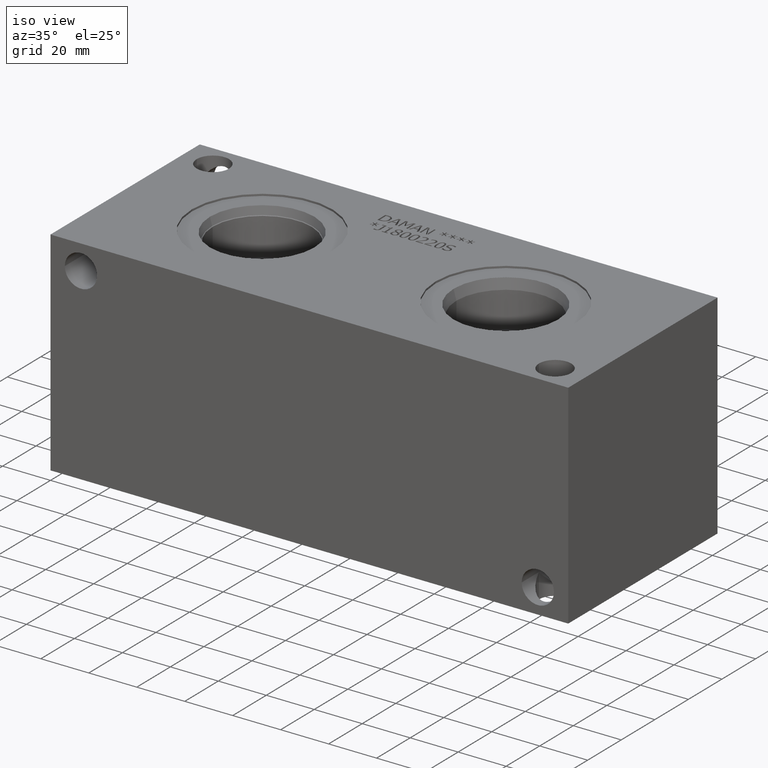
[diagram: clean part render]
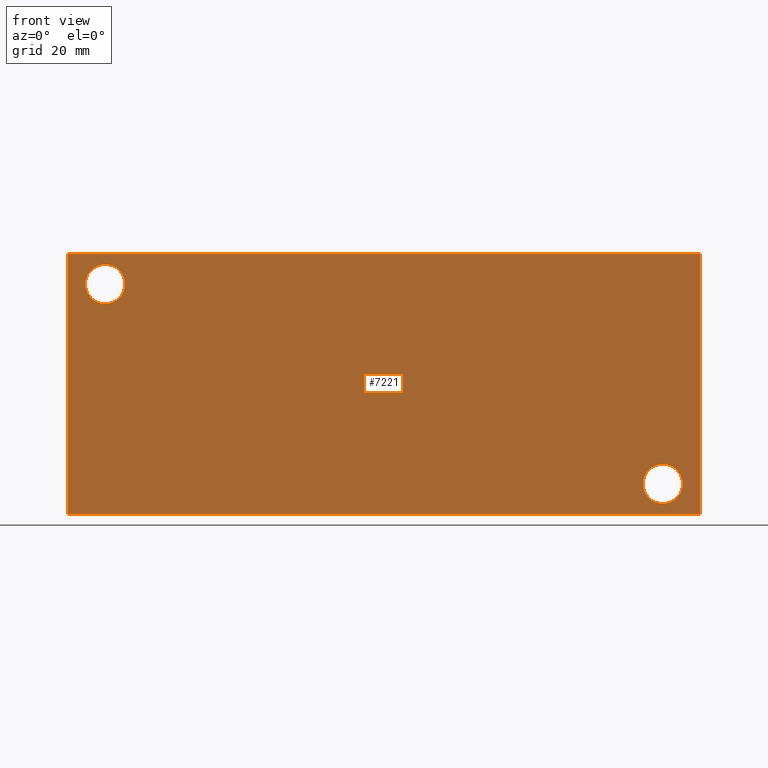
[diagram: tour spotlight — one face highlighted and labeled with its STEP entity id]
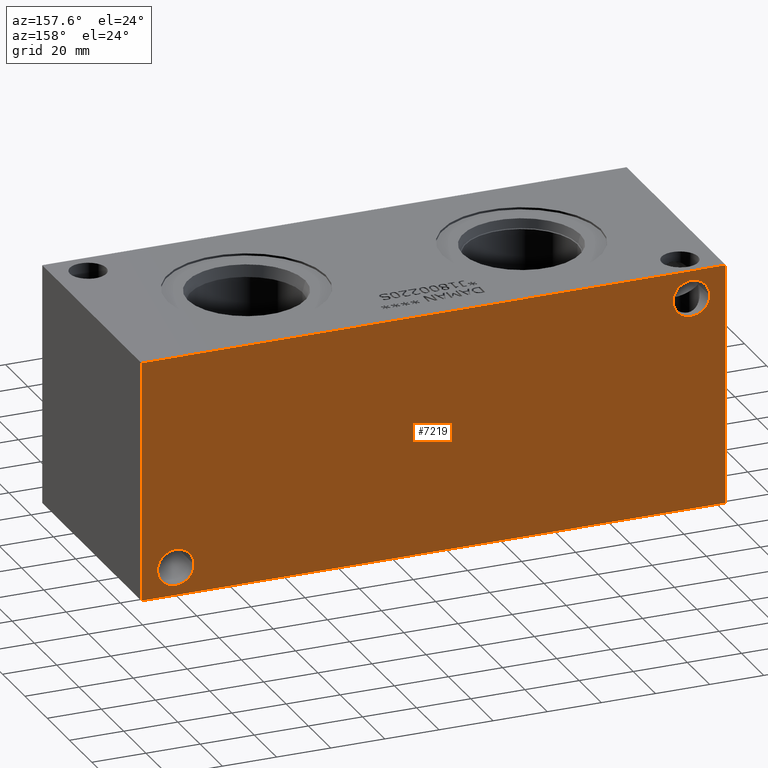
[diagram: tour spotlight — one face highlighted and labeled with its STEP entity id]
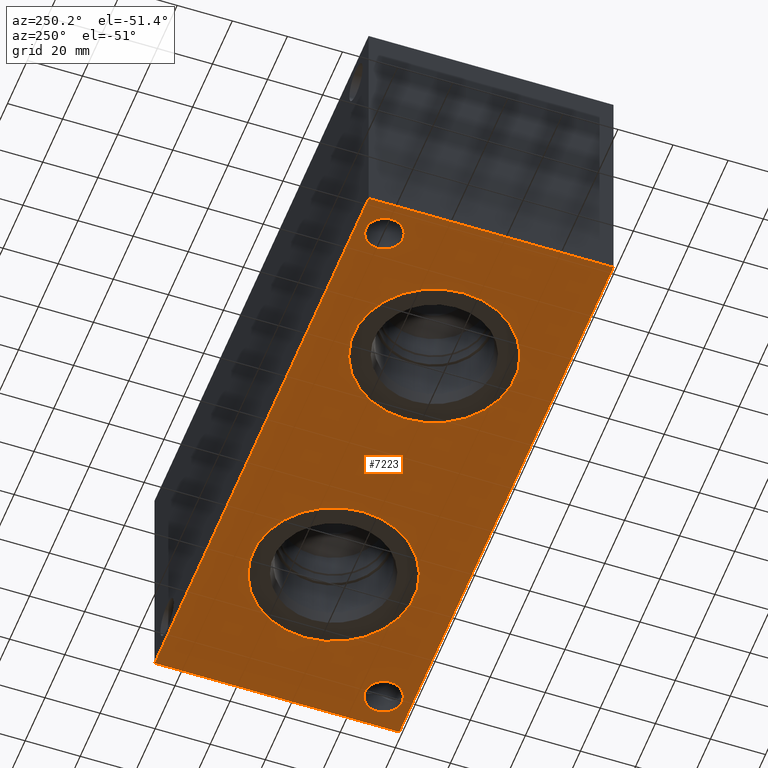
[diagram: tour spotlight — one face highlighted and labeled with its STEP entity id]
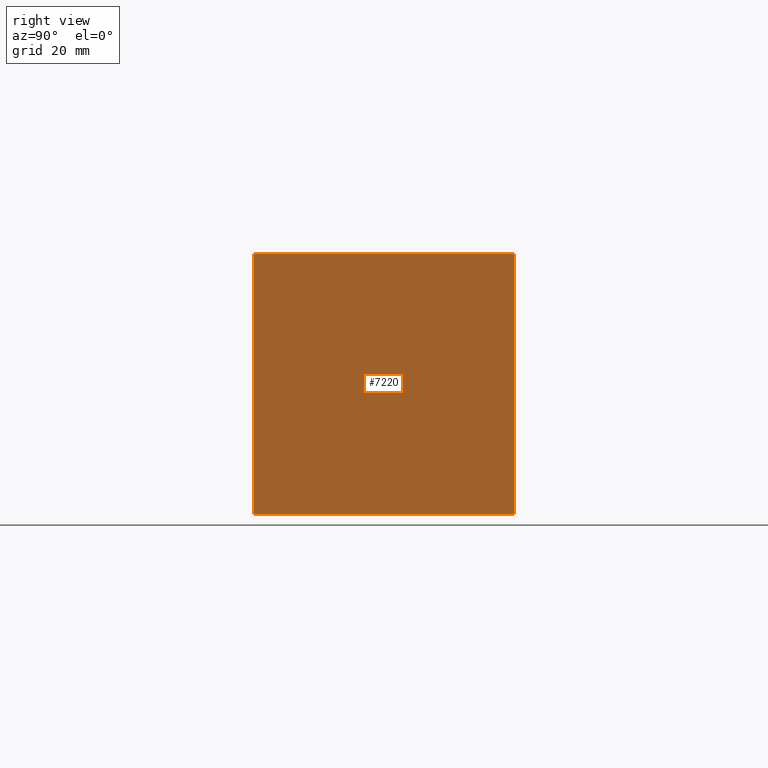
[diagram: tour spotlight — one face highlighted and labeled with its STEP entity id]
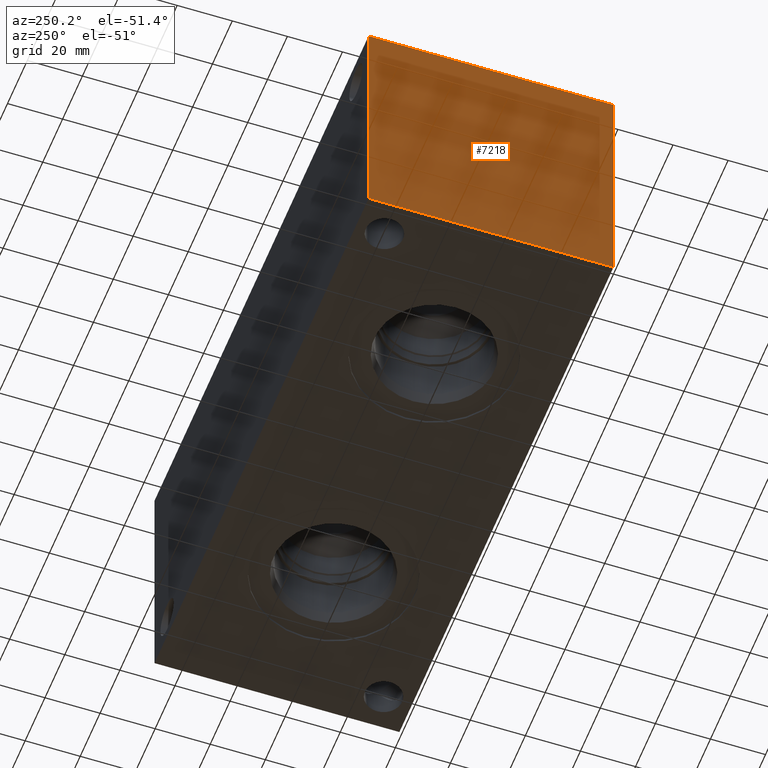
[diagram: tour spotlight — one face highlighted and labeled with its STEP entity id]
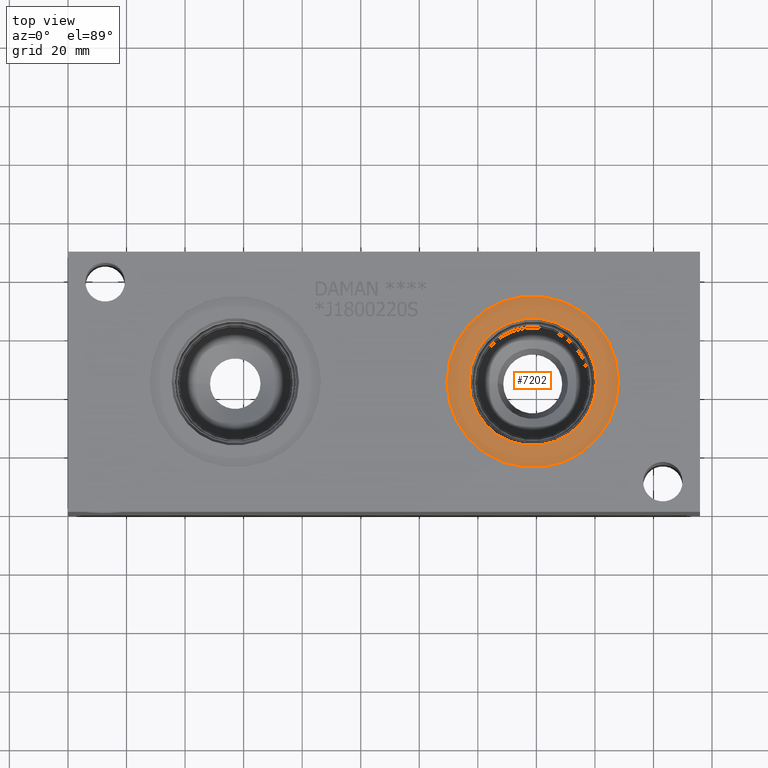
[diagram: tour spotlight — one face highlighted and labeled with its STEP entity id]
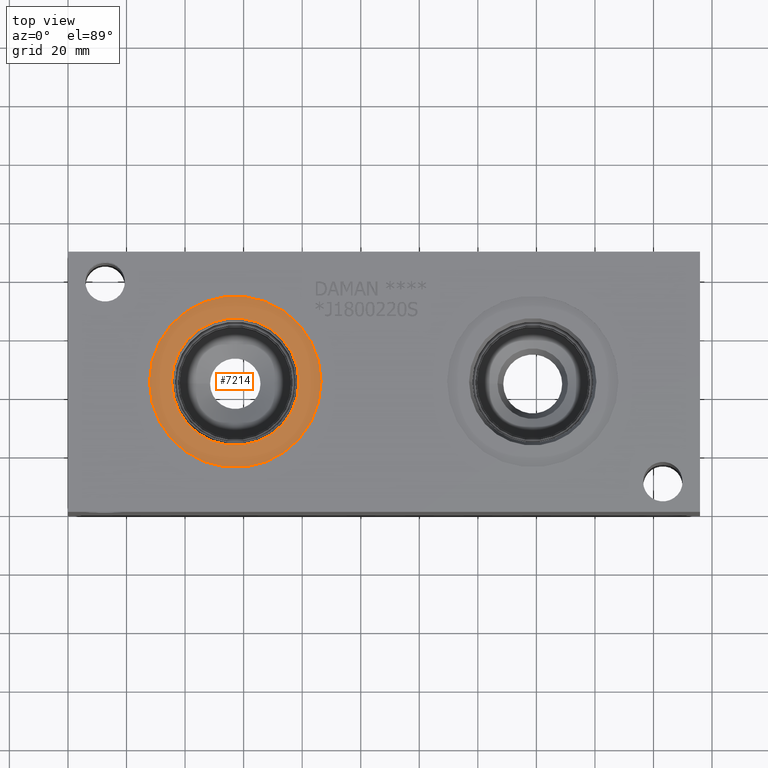
[diagram: tour spotlight — one face highlighted and labeled with its STEP entity id]
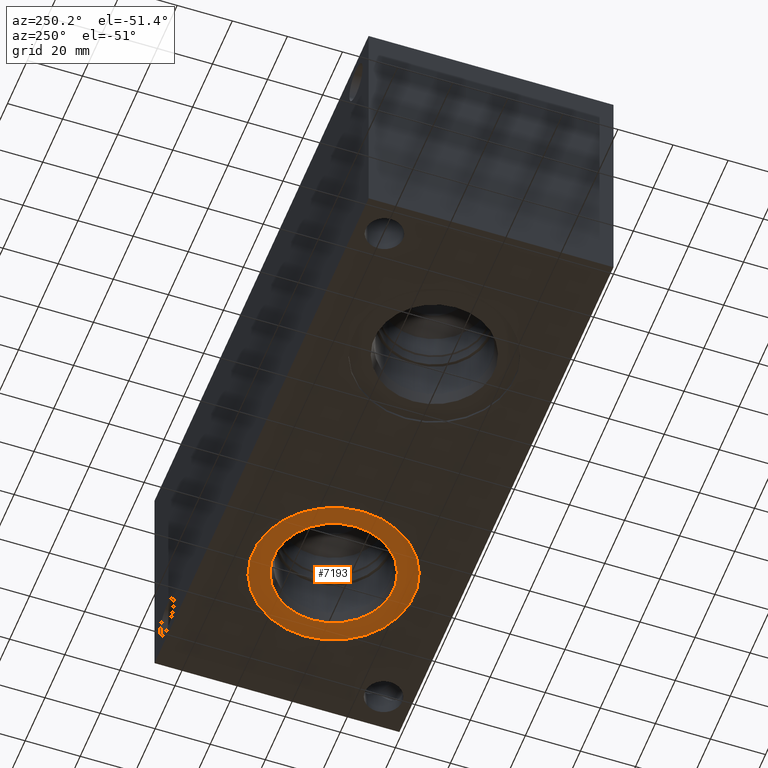
[diagram: tour spotlight — one face highlighted and labeled with its STEP entity id]
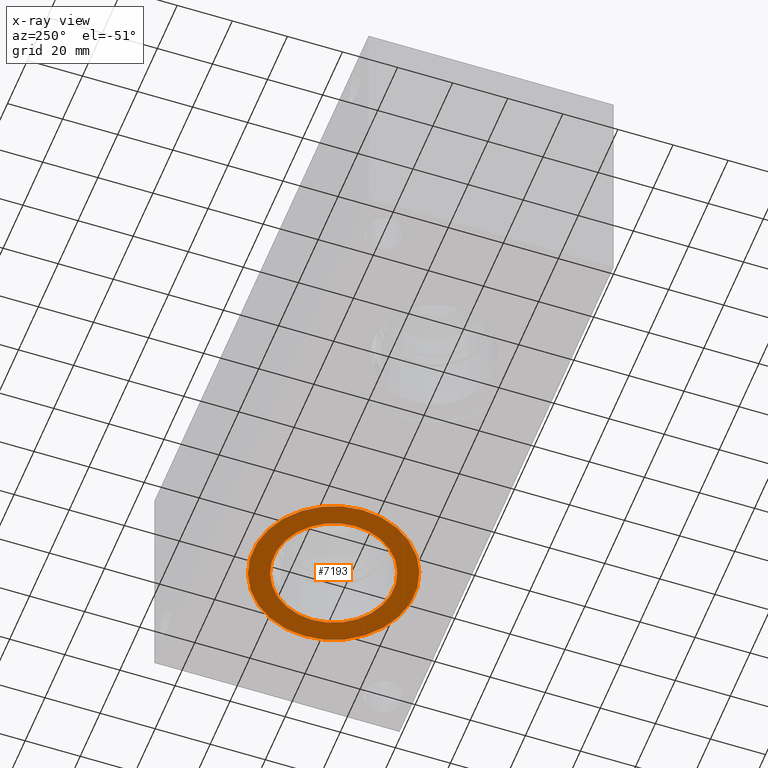
[diagram: x-ray of the same camera — body ghosted, this tour face saturated]
A machine part: a face-by-face anatomy tour. The part has 368 B-rep faces; the first image is the clean iso view, then the 8 largest visible faces are spotlighted one at a time (largest first), each with its STEP entity span.

Face 1 — front view, entity #7221. In plain terms, the highlighted planar face has unit normal (0, -1, 0).
Definition (entity closure, byte-faithful):
#74=CIRCLE('',#7450,6.7437);
#75=CIRCLE('',#7451,6.7437);
#77=CIRCLE('',#7460,6.7437);
#78=CIRCLE('',#7461,6.7437);
#191=FACE_BOUND('',#1293,.T.);
#192=FACE_BOUND('',#1294,.T.);
#883=FACE_OUTER_BOUND('',#1292,.T.);
#1292=EDGE_LOOP('',(#6315,#6316,#6317,#6318));
#1293=EDGE_LOOP('',(#6319,#6320));
#1294=EDGE_LOOP('',(#6321,#6322));
#1559=LINE('',#11203,#2250);
#1985=LINE('',#12395,#2676);
#1990=LINE('',#12404,#2681);
#1991=LINE('',#12406,#2682);
#2250=VECTOR('',#7979,10.);
#2676=VECTOR('',#8973,10.);
#2681=VECTOR('',#8982,10.);
#2682=VECTOR('',#8985,10.);
#2987=VERTEX_POINT('',#11201);
#2988=VERTEX_POINT('',#11202);
#3261=VERTEX_POINT('',#12132);
#3262=VERTEX_POINT('',#12133);
#3266=VERTEX_POINT('',#12150);
#3267=VERTEX_POINT('',#12151);
#3342=VERTEX_POINT('',#12393);
#3344=VERTEX_POINT('',#12402);
#3801=EDGE_CURVE('',#2987,#2988,#1559,.T.);
#4206=EDGE_CURVE('',#3261,#3262,#74,.T.);
#4207=EDGE_CURVE('',#3262,#3261,#75,.T.);
#4216=EDGE_CURVE('',#3266,#3267,#77,.T.);
#4217=EDGE_CURVE('',#3267,#3266,#78,.T.);
#4335=EDGE_CURVE('',#3342,#2987,#1985,.T.);
#4340=EDGE_CURVE('',#3344,#2988,#1990,.T.);
#4341=EDGE_CURVE('',#3342,#3344,#1991,.T.);
#6315=ORIENTED_EDGE('',*,*,#4341,.T.);
#6316=ORIENTED_EDGE('',*,*,#4340,.T.);
#6317=ORIENTED_EDGE('',*,*,#3801,.F.);
#6318=ORIENTED_EDGE('',*,*,#4335,.F.);
#6319=ORIENTED_EDGE('',*,*,#4206,.T.);
#6320=ORIENTED_EDGE('',*,*,#4207,.T.);
#6321=ORIENTED_EDGE('',*,*,#4216,.T.);
#6322=ORIENTED_EDGE('',*,*,#4217,.T.);
#6550=PLANE('',#7588);
#7221=ADVANCED_FACE('',(#883,#191,#192),#6550,.T.);
#7450=AXIS2_PLACEMENT_3D('',#12134,#8656,#8657);
#7451=AXIS2_PLACEMENT_3D('',#12135,#8658,#8659);
#7460=AXIS2_PLACEMENT_3D('',#12152,#8679,#8680);
#7461=AXIS2_PLACEMENT_3D('',#12153,#8681,#8682);
#7588=AXIS2_PLACEMENT_3D('',#12405,#8983,#8984);
#7979=DIRECTION('',(1.,0.,0.));
#8656=DIRECTION('center_axis',(0.,1.,0.));
#8657=DIRECTION('ref_axis',(1.,0.,0.));
#8658=DIRECTION('center_axis',(0.,1.,0.));
#8659=DIRECTION('ref_axis',(1.,0.,0.));
#8679=DIRECTION('center_axis',(0.,1.,0.));
#8680=DIRECTION('ref_axis',(1.,0.,0.));
#8681=DIRECTION('center_axis',(0.,1.,0.));
#8682=DIRECTION('ref_axis',(1.,0.,0.));
#8973=DIRECTION('',(0.,0.,1.));
#8982=DIRECTION('',(0.,0.,1.));
#8983=DIRECTION('center_axis',(0.,-1.,0.));
#8984=DIRECTION('ref_axis',(1.,0.,0.));
#8985=DIRECTION('',(1.,0.,0.));
#11201=CARTESIAN_POINT('',(0.,0.,88.9));
#11202=CARTESIAN_POINT('',(215.9,0.,88.9));
#11203=CARTESIAN_POINT('',(0.,0.,88.9));
#12132=CARTESIAN_POINT('',(209.9437,0.,10.3124));
#12133=CARTESIAN_POINT('',(196.4563,0.,10.3124));
#12134=CARTESIAN_POINT('Origin',(203.2,0.,10.3124));
#12135=CARTESIAN_POINT('Origin',(203.2,0.,10.3124));
#12150=CARTESIAN_POINT('',(19.4437,0.,78.5876));
#12151=CARTESIAN_POINT('',(5.9563,0.,78.5876));
#12152=CARTESIAN_POINT('Origin',(12.7,0.,78.5876));
#12153=CARTESIAN_POINT('Origin',(12.7,0.,78.5876));
#12393=CARTESIAN_POINT('',(0.,0.,0.));
#12395=CARTESIAN_POINT('',(0.,0.,0.));
#12402=CARTESIAN_POINT('',(215.9,0.,0.));
#12404=CARTESIAN_POINT('',(215.9,0.,0.));
#12405=CARTESIAN_POINT('Origin',(0.,0.,0.));
#12406=CARTESIAN_POINT('',(0.,0.,0.));

Face 2 — auxiliary view, entity #7219. In plain terms, the highlighted planar face has unit normal (0, 1, 0).
Definition (entity closure, byte-faithful):
#76=CIRCLE('',#7457,6.7437);
#79=CIRCLE('',#7467,6.7437);
#189=FACE_BOUND('',#1289,.T.);
#190=FACE_BOUND('',#1290,.T.);
#881=FACE_OUTER_BOUND('',#1288,.T.);
#1288=EDGE_LOOP('',(#6305,#6306,#6307,#6308));
#1289=EDGE_LOOP('',(#6309));
#1290=EDGE_LOOP('',(#6310));
#1561=LINE('',#11207,#2252);
#1986=LINE('',#12396,#2677);
#1987=LINE('',#12399,#2678);
#1988=LINE('',#12400,#2679);
#2252=VECTOR('',#7981,10.);
#2677=VECTOR('',#8974,10.);
#2678=VECTOR('',#8977,10.);
#2679=VECTOR('',#8978,10.);
#2989=VERTEX_POINT('',#11204);
#2990=VERTEX_POINT('',#11206);
#3265=VERTEX_POINT('',#12144);
#3270=VERTEX_POINT('',#12162);
#3341=VERTEX_POINT('',#12392);
#3343=VERTEX_POINT('',#12398);
#3803=EDGE_CURVE('',#2989,#2990,#1561,.T.);
#4214=EDGE_CURVE('',#3265,#3265,#76,.T.);
#4224=EDGE_CURVE('',#3270,#3270,#79,.T.);
#4336=EDGE_CURVE('',#3341,#2990,#1986,.T.);
#4337=EDGE_CURVE('',#3343,#3341,#1987,.T.);
#4338=EDGE_CURVE('',#3343,#2989,#1988,.T.);
#6305=ORIENTED_EDGE('',*,*,#4337,.T.);
#6306=ORIENTED_EDGE('',*,*,#4336,.T.);
#6307=ORIENTED_EDGE('',*,*,#3803,.F.);
#6308=ORIENTED_EDGE('',*,*,#4338,.F.);
#6309=ORIENTED_EDGE('',*,*,#4214,.T.);
#6310=ORIENTED_EDGE('',*,*,#4224,.T.);
#6548=PLANE('',#7586);
#7219=ADVANCED_FACE('',(#881,#189,#190),#6548,.T.);
#7457=AXIS2_PLACEMENT_3D('',#12146,#8672,#8673);
#7467=AXIS2_PLACEMENT_3D('',#12164,#8695,#8696);
#7586=AXIS2_PLACEMENT_3D('',#12397,#8975,#8976);
#7981=DIRECTION('',(-1.,0.,0.));
#8672=DIRECTION('center_axis',(0.,-1.,0.));
#8673=DIRECTION('ref_axis',(1.,0.,0.));
#8695=DIRECTION('center_axis',(0.,-1.,0.));
#8696=DIRECTION('ref_axis',(1.,0.,0.));
#8974=DIRECTION('',(0.,0.,1.));
#8975=DIRECTION('center_axis',(0.,1.,0.));
#8976=DIRECTION('ref_axis',(-1.,0.,0.));
#8977=DIRECTION('',(-1.,0.,0.));
#8978=DIRECTION('',(0.,0.,1.));
#11204=CARTESIAN_POINT('',(215.9,88.9,88.9));
#11206=CARTESIAN_POINT('',(0.,88.9,88.9));
#11207=CARTESIAN_POINT('',(215.9,88.9,88.9));
#12144=CARTESIAN_POINT('',(196.4563,88.9,10.3124));
#12146=CARTESIAN_POINT('Origin',(203.2,88.9,10.3124));
#12162=CARTESIAN_POINT('',(5.9563,88.9,78.5876));
#12164=CARTESIAN_POINT('Origin',(12.7,88.9,78.5876));
#12392=CARTESIAN_POINT('',(0.,88.9,0.));
#12396=CARTESIAN_POINT('',(0.,88.9,0.));
#12397=CARTESIAN_POINT('Origin',(215.9,88.9,0.));
#12398=CARTESIAN_POINT('',(215.9,88.9,0.));
#12399=CARTESIAN_POINT('',(215.9,88.9,0.));
#12400=CARTESIAN_POINT('',(215.9,88.9,0.));

Face 3 — auxiliary view, entity #7223. In plain terms, the highlighted planar face has unit normal (0, 0, 1).
Definition (entity closure, byte-faithful):
#80=CIRCLE('',#7470,6.7437);
#81=CIRCLE('',#7472,6.7437);
#110=CIRCLE('',#7518,29.2862);
#111=CIRCLE('',#7519,29.2862);
#116=CIRCLE('',#7528,29.2862);
#117=CIRCLE('',#7529,29.2862);
#193=FACE_BOUND('',#1297,.T.);
#194=FACE_BOUND('',#1298,.T.);
#195=FACE_BOUND('',#1299,.T.);
#196=FACE_BOUND('',#1300,.T.);
#885=FACE_OUTER_BOUND('',#1296,.T.);
#1296=EDGE_LOOP('',(#6326,#6327,#6328,#6329));
#1297=EDGE_LOOP('',(#6330));
#1298=EDGE_LOOP('',(#6331));
#1299=EDGE_LOOP('',(#6332,#6333));
#1300=EDGE_LOOP('',(#6334,#6335));
#1984=LINE('',#12394,#2675);
#1987=LINE('',#12399,#2678);
#1989=LINE('',#12403,#2680);
#1991=LINE('',#12406,#2682);
#2675=VECTOR('',#8972,10.);
#2678=VECTOR('',#8977,10.);
#2680=VECTOR('',#8981,10.);
#2682=VECTOR('',#8985,10.);
#3271=VERTEX_POINT('',#12168);
#3272=VERTEX_POINT('',#12172);
#3301=VERTEX_POINT('',#12261);
#3302=VERTEX_POINT('',#12262);
#3307=VERTEX_POINT('',#12280);
#3308=VERTEX_POINT('',#12281);
#3341=VERTEX_POINT('',#12392);
#3342=VERTEX_POINT('',#12393);
#3343=VERTEX_POINT('',#12398);
#3344=VERTEX_POINT('',#12402);
#4227=EDGE_CURVE('',#3271,#3271,#80,.T.);
#4229=EDGE_CURVE('',#3272,#3272,#81,.T.);
#4271=EDGE_CURVE('',#3301,#3302,#110,.T.);
#4272=EDGE_CURVE('',#3302,#3301,#111,.T.);
#4280=EDGE_CURVE('',#3307,#3308,#116,.T.);
#4281=EDGE_CURVE('',#3308,#3307,#117,.T.);
#4334=EDGE_CURVE('',#3341,#3342,#1984,.T.);
#4337=EDGE_CURVE('',#3343,#3341,#1987,.T.);
#4339=EDGE_CURVE('',#3344,#3343,#1989,.T.);
#4341=EDGE_CURVE('',#3342,#3344,#1991,.T.);
#6326=ORIENTED_EDGE('',*,*,#4341,.F.);
#6327=ORIENTED_EDGE('',*,*,#4334,.F.);
#6328=ORIENTED_EDGE('',*,*,#4337,.F.);
#6329=ORIENTED_EDGE('',*,*,#4339,.F.);
#6330=ORIENTED_EDGE('',*,*,#4227,.T.);
#6331=ORIENTED_EDGE('',*,*,#4229,.T.);
#6332=ORIENTED_EDGE('',*,*,#4271,.T.);
#6333=ORIENTED_EDGE('',*,*,#4272,.T.);
#6334=ORIENTED_EDGE('',*,*,#4280,.T.);
#6335=ORIENTED_EDGE('',*,*,#4281,.T.);
#6552=PLANE('',#7590);
#7223=ADVANCED_FACE('',(#885,#193,#194,#195,#196),#6552,.F.);
#7470=AXIS2_PLACEMENT_3D('',#12170,#8703,#8704);
#7472=AXIS2_PLACEMENT_3D('',#12174,#8708,#8709);
#7518=AXIS2_PLACEMENT_3D('',#12263,#8813,#8814);
#7519=AXIS2_PLACEMENT_3D('',#12264,#8815,#8816);
#7528=AXIS2_PLACEMENT_3D('',#12282,#8836,#8837);
#7529=AXIS2_PLACEMENT_3D('',#12283,#8838,#8839);
#7590=AXIS2_PLACEMENT_3D('',#12408,#8988,#8989);
#8703=DIRECTION('center_axis',(0.,0.,1.));
#8704=DIRECTION('ref_axis',(1.,0.,0.));
#8708=DIRECTION('center_axis',(0.,0.,1.));
#8709=DIRECTION('ref_axis',(1.,0.,0.));
#8813=DIRECTION('center_axis',(0.,0.,1.));
#8814=DIRECTION('ref_axis',(1.,0.,0.));
#8815=DIRECTION('center_axis',(0.,0.,1.));
#8816=DIRECTION('ref_axis',(1.,0.,0.));
#8836=DIRECTION('center_axis',(0.,0.,1.));
#8837=DIRECTION('ref_axis',(1.,0.,0.));
#8838=DIRECTION('center_axis',(0.,0.,1.));
#8839=DIRECTION('ref_axis',(1.,0.,0.));
#8972=DIRECTION('',(0.,-1.,0.));
#8977=DIRECTION('',(-1.,0.,0.));
#8981=DIRECTION('',(0.,1.,0.));
#8985=DIRECTION('',(1.,0.,0.));
#8988=DIRECTION('center_axis',(0.,0.,1.));
#8989=DIRECTION('ref_axis',(1.,0.,0.));
#12168=CARTESIAN_POINT('',(196.4563,10.3124,0.));
#12170=CARTESIAN_POINT('Origin',(203.2,10.3124,0.));
#12172=CARTESIAN_POINT('',(5.9563,78.5876,0.));
#12174=CARTESIAN_POINT('Origin',(12.7,78.5876,0.));
#12261=CARTESIAN_POINT('',(86.4362,44.45,0.));
#12262=CARTESIAN_POINT('',(27.8638,44.45,0.));
#12263=CARTESIAN_POINT('Origin',(57.15,44.45,0.));
#12264=CARTESIAN_POINT('Origin',(57.15,44.45,0.));
#12280=CARTESIAN_POINT('',(188.0362,44.45,0.));
#12281=CARTESIAN_POINT('',(129.4638,44.45,0.));
#12282=CARTESIAN_POINT('Origin',(158.75,44.45,0.));
#12283=CARTESIAN_POINT('Origin',(158.75,44.45,0.));
#12392=CARTESIAN_POINT('',(0.,88.9,0.));
#12393=CARTESIAN_POINT('',(0.,0.,0.));
#12394=CARTESIAN_POINT('',(0.,88.9,0.));
#12398=CARTESIAN_POINT('',(215.9,88.9,0.));
#12399=CARTESIAN_POINT('',(215.9,88.9,0.));
#12402=CARTESIAN_POINT('',(215.9,0.,0.));
#12403=CARTESIAN_POINT('',(215.9,0.,0.));
#12406=CARTESIAN_POINT('',(0.,0.,0.));
#12408=CARTESIAN_POINT('Origin',(107.95,44.45,0.));

Face 4 — right view, entity #7220. In plain terms, the highlighted planar face has unit normal (1, 0, 0).
Definition (entity closure, byte-faithful):
#882=FACE_OUTER_BOUND('',#1291,.T.);
#1291=EDGE_LOOP('',(#6311,#6312,#6313,#6314));
#1560=LINE('',#11205,#2251);
#1988=LINE('',#12400,#2679);
#1989=LINE('',#12403,#2680);
#1990=LINE('',#12404,#2681);
#2251=VECTOR('',#7980,10.);
#2679=VECTOR('',#8978,10.);
#2680=VECTOR('',#8981,10.);
#2681=VECTOR('',#8982,10.);
#2988=VERTEX_POINT('',#11202);
#2989=VERTEX_POINT('',#11204);
#3343=VERTEX_POINT('',#12398);
#3344=VERTEX_POINT('',#12402);
#3802=EDGE_CURVE('',#2988,#2989,#1560,.T.);
#4338=EDGE_CURVE('',#3343,#2989,#1988,.T.);
#4339=EDGE_CURVE('',#3344,#3343,#1989,.T.);
#4340=EDGE_CURVE('',#3344,#2988,#1990,.T.);
#6311=ORIENTED_EDGE('',*,*,#4339,.T.);
#6312=ORIENTED_EDGE('',*,*,#4338,.T.);
#6313=ORIENTED_EDGE('',*,*,#3802,.F.);
#6314=ORIENTED_EDGE('',*,*,#4340,.F.);
#6549=PLANE('',#7587);
#7220=ADVANCED_FACE('',(#882),#6549,.T.);
#7587=AXIS2_PLACEMENT_3D('',#12401,#8979,#8980);
#7980=DIRECTION('',(0.,1.,0.));
#8978=DIRECTION('',(0.,0.,1.));
#8979=DIRECTION('center_axis',(1.,0.,0.));
#8980=DIRECTION('ref_axis',(0.,1.,0.));
#8981=DIRECTION('',(0.,1.,0.));
#8982=DIRECTION('',(0.,0.,1.));
#11202=CARTESIAN_POINT('',(215.9,0.,88.9));
#11204=CARTESIAN_POINT('',(215.9,88.9,88.9));
#11205=CARTESIAN_POINT('',(215.9,0.,88.9));
#12398=CARTESIAN_POINT('',(215.9,88.9,0.));
#12400=CARTESIAN_POINT('',(215.9,88.9,0.));
#12401=CARTESIAN_POINT('Origin',(215.9,0.,0.));
#12402=CARTESIAN_POINT('',(215.9,0.,0.));
#12403=CARTESIAN_POINT('',(215.9,0.,0.));
#12404=CARTESIAN_POINT('',(215.9,0.,0.));

Face 5 — auxiliary view, entity #7218. In plain terms, the highlighted planar face has unit normal (-1, 0, 0).
Definition (entity closure, byte-faithful):
#880=FACE_OUTER_BOUND('',#1287,.T.);
#1287=EDGE_LOOP('',(#6301,#6302,#6303,#6304));
#1562=LINE('',#11208,#2253);
#1984=LINE('',#12394,#2675);
#1985=LINE('',#12395,#2676);
#1986=LINE('',#12396,#2677);
#2253=VECTOR('',#7982,10.);
#2675=VECTOR('',#8972,10.);
#2676=VECTOR('',#8973,10.);
#2677=VECTOR('',#8974,10.);
#2987=VERTEX_POINT('',#11201);
#2990=VERTEX_POINT('',#11206);
#3341=VERTEX_POINT('',#12392);
#3342=VERTEX_POINT('',#12393);
#3804=EDGE_CURVE('',#2990,#2987,#1562,.T.);
#4334=EDGE_CURVE('',#3341,#3342,#1984,.T.);
#4335=EDGE_CURVE('',#3342,#2987,#1985,.T.);
#4336=EDGE_CURVE('',#3341,#2990,#1986,.T.);
#6301=ORIENTED_EDGE('',*,*,#4334,.T.);
#6302=ORIENTED_EDGE('',*,*,#4335,.T.);
#6303=ORIENTED_EDGE('',*,*,#3804,.F.);
#6304=ORIENTED_EDGE('',*,*,#4336,.F.);
#6547=PLANE('',#7585);
#7218=ADVANCED_FACE('',(#880),#6547,.T.);
#7585=AXIS2_PLACEMENT_3D('',#12391,#8970,#8971);
#7982=DIRECTION('',(0.,-1.,0.));
#8970=DIRECTION('center_axis',(-1.,0.,0.));
#8971=DIRECTION('ref_axis',(0.,-1.,0.));
#8972=DIRECTION('',(0.,-1.,0.));
#8973=DIRECTION('',(0.,0.,1.));
#8974=DIRECTION('',(0.,0.,1.));
#11201=CARTESIAN_POINT('',(0.,0.,88.9));
#11206=CARTESIAN_POINT('',(0.,88.9,88.9));
#11208=CARTESIAN_POINT('',(0.,88.9,88.9));
#12391=CARTESIAN_POINT('Origin',(0.,88.9,0.));
#12392=CARTESIAN_POINT('',(0.,88.9,0.));
#12393=CARTESIAN_POINT('',(0.,0.,0.));
#12394=CARTESIAN_POINT('',(0.,88.9,0.));
#12395=CARTESIAN_POINT('',(0.,0.,0.));
#12396=CARTESIAN_POINT('',(0.,88.9,0.));

Face 6 — top view, entity #7202. In plain terms, the highlighted planar face has unit normal (0, 0, 1).
Definition (entity closure, byte-faithful):
#128=CIRCLE('',#7548,29.2862);
#129=CIRCLE('',#7549,29.2862);
#130=CIRCLE('',#7550,21.7551);
#186=FACE_BOUND('',#1269,.T.);
#864=FACE_OUTER_BOUND('',#1268,.T.);
#1268=EDGE_LOOP('',(#6222,#6223));
#1269=EDGE_LOOP('',(#6224));
#3319=VERTEX_POINT('',#12319);
#3320=VERTEX_POINT('',#12320);
#3321=VERTEX_POINT('',#12323);
#4299=EDGE_CURVE('',#3319,#3320,#128,.T.);
#4300=EDGE_CURVE('',#3320,#3319,#129,.T.);
#4301=EDGE_CURVE('',#3321,#3321,#130,.T.);
#6222=ORIENTED_EDGE('',*,*,#4299,.T.);
#6223=ORIENTED_EDGE('',*,*,#4300,.T.);
#6224=ORIENTED_EDGE('',*,*,#4301,.F.);
#6544=PLANE('',#7547);
#7202=ADVANCED_FACE('',(#864,#186),#6544,.T.);
#7547=AXIS2_PLACEMENT_3D('',#12318,#8881,#8882);
#7548=AXIS2_PLACEMENT_3D('',#12321,#8883,#8884);
#7549=AXIS2_PLACEMENT_3D('',#12322,#8885,#8886);
#7550=AXIS2_PLACEMENT_3D('',#12324,#8887,#8888);
#8881=DIRECTION('center_axis',(0.,0.,1.));
#8882=DIRECTION('ref_axis',(1.,0.,0.));
#8883=DIRECTION('center_axis',(0.,0.,1.));
#8884=DIRECTION('ref_axis',(1.,0.,0.));
#8885=DIRECTION('center_axis',(0.,0.,1.));
#8886=DIRECTION('ref_axis',(1.,0.,0.));
#8887=DIRECTION('center_axis',(0.,0.,1.));
#8888=DIRECTION('ref_axis',(1.,0.,0.));
#12318=CARTESIAN_POINT('Origin',(158.75,44.45,88.1126));
#12319=CARTESIAN_POINT('',(188.0362,44.45,88.1126));
#12320=CARTESIAN_POINT('',(129.4638,44.45,88.1126));
#12321=CARTESIAN_POINT('Origin',(158.75,44.45,88.1126));
#12322=CARTESIAN_POINT('Origin',(158.75,44.45,88.1126));
#12323=CARTESIAN_POINT('',(136.9949,44.45,88.1126));
#12324=CARTESIAN_POINT('Origin',(158.75,44.45,88.1126));

Face 7 — top view, entity #7214. In plain terms, the highlighted planar face has unit normal (0, 0, -1).
Definition (entity closure, byte-faithful):
#142=CIRCLE('',#7573,29.2862);
#143=CIRCLE('',#7574,29.2862);
#144=CIRCLE('',#7576,21.7551);
#145=CIRCLE('',#7577,21.7551);
#188=FACE_BOUND('',#1283,.T.);
#876=FACE_OUTER_BOUND('',#1282,.T.);
#1282=EDGE_LOOP('',(#6280,#6281));
#1283=EDGE_LOOP('',(#6282,#6283));
#3333=VERTEX_POINT('',#12367);
#3334=VERTEX_POINT('',#12369);
#3335=VERTEX_POINT('',#12373);
#3336=VERTEX_POINT('',#12374);
#4323=EDGE_CURVE('',#3333,#3334,#142,.T.);
#4324=EDGE_CURVE('',#3334,#3333,#143,.T.);
#4325=EDGE_CURVE('',#3335,#3336,#144,.T.);
#4326=EDGE_CURVE('',#3336,#3335,#145,.T.);
#6280=ORIENTED_EDGE('',*,*,#4324,.F.);
#6281=ORIENTED_EDGE('',*,*,#4323,.F.);
#6282=ORIENTED_EDGE('',*,*,#4325,.T.);
#6283=ORIENTED_EDGE('',*,*,#4326,.T.);
#6546=PLANE('',#7575);
#7214=ADVANCED_FACE('',(#876,#188),#6546,.F.);
#7573=AXIS2_PLACEMENT_3D('',#12370,#8943,#8944);
#7574=AXIS2_PLACEMENT_3D('',#12371,#8945,#8946);
#7575=AXIS2_PLACEMENT_3D('',#12372,#8947,#8948);
#7576=AXIS2_PLACEMENT_3D('',#12375,#8949,#8950);
#7577=AXIS2_PLACEMENT_3D('',#12376,#8951,#8952);
#8943=DIRECTION('center_axis',(0.,0.,-1.));
#8944=DIRECTION('ref_axis',(1.,0.,0.));
#8945=DIRECTION('center_axis',(0.,0.,-1.));
#8946=DIRECTION('ref_axis',(1.,0.,0.));
#8947=DIRECTION('center_axis',(0.,0.,-1.));
#8948=DIRECTION('ref_axis',(-1.,0.,0.));
#8949=DIRECTION('center_axis',(0.,0.,-1.));
#8950=DIRECTION('ref_axis',(1.,0.,0.));
#8951=DIRECTION('center_axis',(0.,0.,-1.));
#8952=DIRECTION('ref_axis',(1.,0.,0.));
#12367=CARTESIAN_POINT('',(27.8638,44.45,88.1126));
#12369=CARTESIAN_POINT('',(86.4362,44.45,88.1126));
#12370=CARTESIAN_POINT('Origin',(57.15,44.45,88.1126));
#12371=CARTESIAN_POINT('Origin',(57.15,44.45,88.1126));
#12372=CARTESIAN_POINT('Origin',(78.9051,44.45,88.1126));
#12373=CARTESIAN_POINT('',(78.9051,44.45,88.1126));
#12374=CARTESIAN_POINT('',(35.3949,44.45,88.1126));
#12375=CARTESIAN_POINT('Origin',(57.15,44.45,88.1126));
#12376=CARTESIAN_POINT('Origin',(57.15,44.45,88.1126));

Face 8 — auxiliary view, entity #7193. An x-ray twin of the same camera follows (body ghosted, this face saturated) — the face is partly hidden behind the body. In plain terms, the highlighted planar face has unit normal (0, 0, -1).
Definition (entity closure, byte-faithful):
#113=CIRCLE('',#7524,29.2862);
#114=CIRCLE('',#7525,29.2862);
#115=CIRCLE('',#7526,21.7551);
#184=FACE_BOUND('',#1258,.T.);
#855=FACE_OUTER_BOUND('',#1257,.T.);
#1257=EDGE_LOOP('',(#6181,#6182));
#1258=EDGE_LOOP('',(#6183));
#3304=VERTEX_POINT('',#12273);
#3305=VERTEX_POINT('',#12274);
#3306=VERTEX_POINT('',#12277);
#4277=EDGE_CURVE('',#3304,#3305,#113,.T.);
#4278=EDGE_CURVE('',#3305,#3304,#114,.T.);
#4279=EDGE_CURVE('',#3306,#3306,#115,.T.);
#6181=ORIENTED_EDGE('',*,*,#4277,.T.);
#6182=ORIENTED_EDGE('',*,*,#4278,.T.);
#6183=ORIENTED_EDGE('',*,*,#4279,.F.);
#6542=PLANE('',#7523);
#7193=ADVANCED_FACE('',(#855,#184),#6542,.T.);
#7523=AXIS2_PLACEMENT_3D('',#12272,#8826,#8827);
#7524=AXIS2_PLACEMENT_3D('',#12275,#8828,#8829);
#7525=AXIS2_PLACEMENT_3D('',#12276,#8830,#8831);
#7526=AXIS2_PLACEMENT_3D('',#12278,#8832,#8833);
#8826=DIRECTION('center_axis',(0.,0.,-1.));
#8827=DIRECTION('ref_axis',(1.,0.,0.));
#8828=DIRECTION('center_axis',(0.,0.,-1.));
#8829=DIRECTION('ref_axis',(1.,0.,0.));
#8830=DIRECTION('center_axis',(0.,0.,-1.));
#8831=DIRECTION('ref_axis',(1.,0.,0.));
#8832=DIRECTION('center_axis',(0.,0.,-1.));
#8833=DIRECTION('ref_axis',(1.,0.,0.));
#12272=CARTESIAN_POINT('Origin',(158.75,44.45,0.7874));
#12273=CARTESIAN_POINT('',(188.0362,44.45,0.7874));
#12274=CARTESIAN_POINT('',(129.4638,44.45,0.7874));
#12275=CARTESIAN_POINT('Origin',(158.75,44.45,0.7874));
#12276=CARTESIAN_POINT('Origin',(158.75,44.45,0.7874));
#12277=CARTESIAN_POINT('',(136.9949,44.45,0.7874));
#12278=CARTESIAN_POINT('Origin',(158.75,44.45,0.7874));